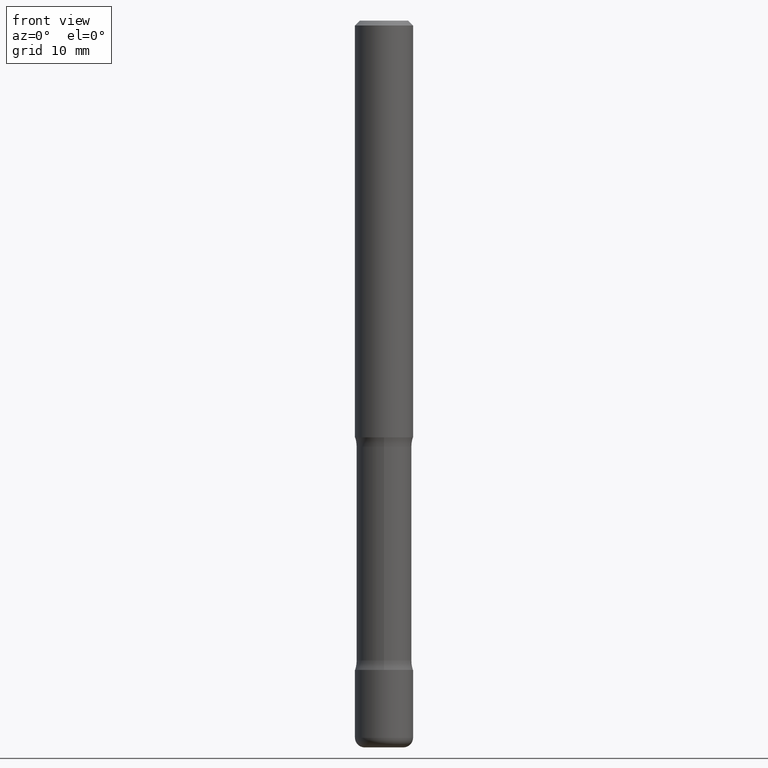
[diagram: clean part render]
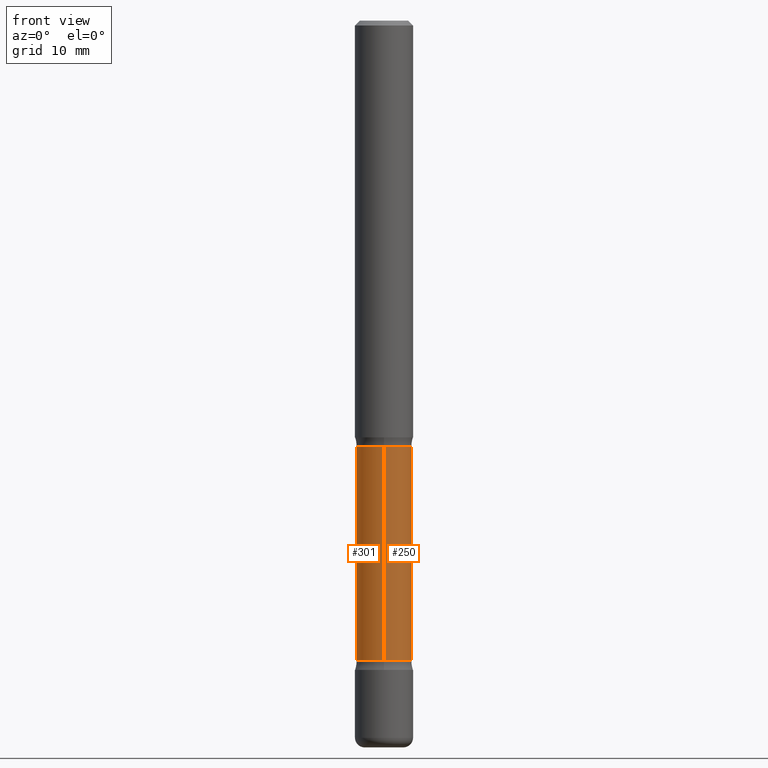
[diagram: same view with one multi-face feature highlighted, each face labeled with its STEP entity id]
A machine part, front view. The highlighted faces form ONE feature: a constant-radius fillet chain: 2 tangent blend faces with common blend radius 2.8448 mm. The faces share edges in the B-rep.
Their STEP definitions:
[1] entity #250 (Cylinder):
#1 = EDGE_LOOP ( 'NONE', ( #221, #207, #180, #419 ) ) ;
#65 = LINE ( 'NONE', #239, #407 ) ;
#80 = VECTOR ( 'NONE', #478, 39.37007874015748143 ) ;
#82 = FACE_OUTER_BOUND ( 'NONE', #1, .T. ) ;
#86 = CARTESIAN_POINT ( 'NONE',  ( -7.893002946435583008E-16, -0.1120000000000037355, -1.731571880949727360 ) ) ;
#154 = CARTESIAN_POINT ( 'NONE',  ( -7.683757757503377165E-16, -0.1120000000000100637, -2.952799999999998093 ) ) ;
#159 = CIRCLE ( 'NONE', #430, 0.1119999999999999607 ) ;
#174 = DIRECTION ( 'NONE',  ( 6.982962677686265922E-15, 1.000000000000000000, -4.878299988686211732E-15 ) ) ;
#180 = ORIENTED_EDGE ( 'NONE', *, *, #540, .F. ) ;
#207 = ORIENTED_EDGE ( 'NONE', *, *, #517, .T. ) ;
#221 = ORIENTED_EDGE ( 'NONE', *, *, #504, .T. ) ;
#229 = CARTESIAN_POINT ( 'NONE',  ( 6.389383135773382663E-29, -9.027824341983271300E-15, -2.599228119050268848 ) ) ;
#230 = DIRECTION ( 'NONE',  ( 6.982962677686265922E-15, 1.000000000000000000, -4.878299988686185699E-15 ) ) ;
#239 = CARTESIAN_POINT ( 'NONE',  ( 7.820918199009269802E-16, 0.1119999999999886919, -2.952799999999998981 ) ) ;
#250 = ADVANCED_FACE ( 'NONE', ( #82 ), #289, .T. ) ;
#253 = CARTESIAN_POINT ( 'NONE',  ( 7.820918199009254025E-16, 0.1119999999999909263, -2.599228119050269292 ) ) ;
#274 = CARTESIAN_POINT ( 'NONE',  ( 7.820918199009036102E-16, 0.1119999999999938822, -1.731571880949728470 ) ) ;
#278 = VERTEX_POINT ( 'NONE', #274 ) ;
#288 = DIRECTION ( 'NONE',  ( 1.588579028894789859E-29, -4.718596271060237416E-15, -1.000000000000000000 ) ) ;
#289 = CYLINDRICAL_SURFACE ( 'NONE', #480, 0.1119999999999993778 ) ;
#296 = VERTEX_POINT ( 'NONE', #86 ) ;
#313 = CIRCLE ( 'NONE', #449, 0.1119999999999988088 ) ;
#318 = VERTEX_POINT ( 'NONE', #253 ) ;
#319 = DIRECTION ( 'NONE',  ( 1.588579028894789859E-29, -4.718596271060237416E-15, -1.000000000000000000 ) ) ;
#372 = DIRECTION ( 'NONE',  ( 6.982962677686266711E-15, 1.000000000000000000, -4.878299988686236186E-15 ) ) ;
#383 = DIRECTION ( 'NONE',  ( 1.588579028894789859E-29, -4.718596271060237416E-15, -1.000000000000000000 ) ) ;
#384 = DIRECTION ( 'NONE',  ( 1.588579028894789859E-29, -4.718596271060237416E-15, -1.000000000000000000 ) ) ;
#402 = CARTESIAN_POINT ( 'NONE',  ( 6.951060011057008387E-29, -1.069618730098441919E-14, -2.952799999999998537 ) ) ;
#407 = VECTOR ( 'NONE', #384, 39.37007874015748143 ) ;
#417 = VERTEX_POINT ( 'NONE', #420 ) ;
#419 = ORIENTED_EDGE ( 'NONE', *, *, #446, .F. ) ;
#420 = CARTESIAN_POINT ( 'NONE',  ( -7.893002946435520885E-16, -0.1120000000000089951, -2.599228119050268404 ) ) ;
#430 = AXIS2_PLACEMENT_3D ( 'NONE', #229, #319, #230 ) ;
#446 = EDGE_CURVE ( 'NONE', #278, #318, #65, .T. ) ;
#449 = AXIS2_PLACEMENT_3D ( 'NONE', #497, #383, #372 ) ;
#478 = DIRECTION ( 'NONE',  ( 1.588579028894789859E-29, -4.718596271060237416E-15, -1.000000000000000000 ) ) ;
#480 = AXIS2_PLACEMENT_3D ( 'NONE', #402, #288, #174 ) ;
#497 = CARTESIAN_POINT ( 'NONE',  ( 5.011042631637117785E-29, -4.933704852319903840E-15, -1.731571880949727804 ) ) ;
#504 = EDGE_CURVE ( 'NONE', #278, #296, #313, .T. ) ;
#509 = LINE ( 'NONE', #154, #80 ) ;
#517 = EDGE_CURVE ( 'NONE', #296, #417, #509, .T. ) ;
#540 = EDGE_CURVE ( 'NONE', #318, #417, #159, .T. ) ;
[2] entity #301 (Cylinder):
#7 = ORIENTED_EDGE ( 'NONE', *, *, #517, .F. ) ;
#11 = CYLINDRICAL_SURFACE ( 'NONE', #291, 0.1119999999999993778 ) ;
#19 = AXIS2_PLACEMENT_3D ( 'NONE', #391, #515, #342 ) ;
#23 = CARTESIAN_POINT ( 'NONE',  ( 5.011042631637117785E-29, -4.933704852319903840E-15, -1.731571880949727804 ) ) ;
#52 = AXIS2_PLACEMENT_3D ( 'NONE', #23, #320, #151 ) ;
#54 = ORIENTED_EDGE ( 'NONE', *, *, #461, .T. ) ;
#65 = LINE ( 'NONE', #239, #407 ) ;
#80 = VECTOR ( 'NONE', #478, 39.37007874015748143 ) ;
#86 = CARTESIAN_POINT ( 'NONE',  ( -7.893002946435583008E-16, -0.1120000000000037355, -1.731571880949727360 ) ) ;
#101 = ORIENTED_EDGE ( 'NONE', *, *, #446, .T. ) ;
#151 = DIRECTION ( 'NONE',  ( 6.982962677686266711E-15, 1.000000000000000000, -4.878299988686236186E-15 ) ) ;
#154 = CARTESIAN_POINT ( 'NONE',  ( -7.683757757503377165E-16, -0.1120000000000100637, -2.952799999999998093 ) ) ;
#167 = EDGE_CURVE ( 'NONE', #417, #318, #473, .T. ) ;
#181 = DIRECTION ( 'NONE',  ( 1.588579028894789859E-29, -4.718596271060237416E-15, -1.000000000000000000 ) ) ;
#220 = FACE_OUTER_BOUND ( 'NONE', #353, .T. ) ;
#239 = CARTESIAN_POINT ( 'NONE',  ( 7.820918199009269802E-16, 0.1119999999999886919, -2.952799999999998981 ) ) ;
#253 = CARTESIAN_POINT ( 'NONE',  ( 7.820918199009254025E-16, 0.1119999999999909263, -2.599228119050269292 ) ) ;
#274 = CARTESIAN_POINT ( 'NONE',  ( 7.820918199009036102E-16, 0.1119999999999938822, -1.731571880949728470 ) ) ;
#278 = VERTEX_POINT ( 'NONE', #274 ) ;
#291 = AXIS2_PLACEMENT_3D ( 'NONE', #410, #181, #364 ) ;
#292 = CIRCLE ( 'NONE', #52, 0.1119999999999988088 ) ;
#296 = VERTEX_POINT ( 'NONE', #86 ) ;
#301 = ADVANCED_FACE ( 'NONE', ( #220 ), #11, .T. ) ;
#318 = VERTEX_POINT ( 'NONE', #253 ) ;
#320 = DIRECTION ( 'NONE',  ( 1.588579028894789859E-29, -4.718596271060237416E-15, -1.000000000000000000 ) ) ;
#342 = DIRECTION ( 'NONE',  ( 6.982962677686265922E-15, 1.000000000000000000, -4.878299988686185699E-15 ) ) ;
#353 = EDGE_LOOP ( 'NONE', ( #7, #54, #101, #505 ) ) ;
#364 = DIRECTION ( 'NONE',  ( 6.982962677686265922E-15, 1.000000000000000000, -4.878299988686211732E-15 ) ) ;
#384 = DIRECTION ( 'NONE',  ( 1.588579028894789859E-29, -4.718596271060237416E-15, -1.000000000000000000 ) ) ;
#391 = CARTESIAN_POINT ( 'NONE',  ( 6.389383135773382663E-29, -9.027824341983271300E-15, -2.599228119050268848 ) ) ;
#407 = VECTOR ( 'NONE', #384, 39.37007874015748143 ) ;
#410 = CARTESIAN_POINT ( 'NONE',  ( 6.951060011057008387E-29, -1.069618730098441919E-14, -2.952799999999998537 ) ) ;
#417 = VERTEX_POINT ( 'NONE', #420 ) ;
#420 = CARTESIAN_POINT ( 'NONE',  ( -7.893002946435520885E-16, -0.1120000000000089951, -2.599228119050268404 ) ) ;
#446 = EDGE_CURVE ( 'NONE', #278, #318, #65, .T. ) ;
#461 = EDGE_CURVE ( 'NONE', #296, #278, #292, .T. ) ;
#473 = CIRCLE ( 'NONE', #19, 0.1119999999999999607 ) ;
#478 = DIRECTION ( 'NONE',  ( 1.588579028894789859E-29, -4.718596271060237416E-15, -1.000000000000000000 ) ) ;
#505 = ORIENTED_EDGE ( 'NONE', *, *, #167, .F. ) ;
#509 = LINE ( 'NONE', #154, #80 ) ;
#515 = DIRECTION ( 'NONE',  ( 1.588579028894789859E-29, -4.718596271060237416E-15, -1.000000000000000000 ) ) ;
#517 = EDGE_CURVE ( 'NONE', #296, #417, #509, .T. ) ;